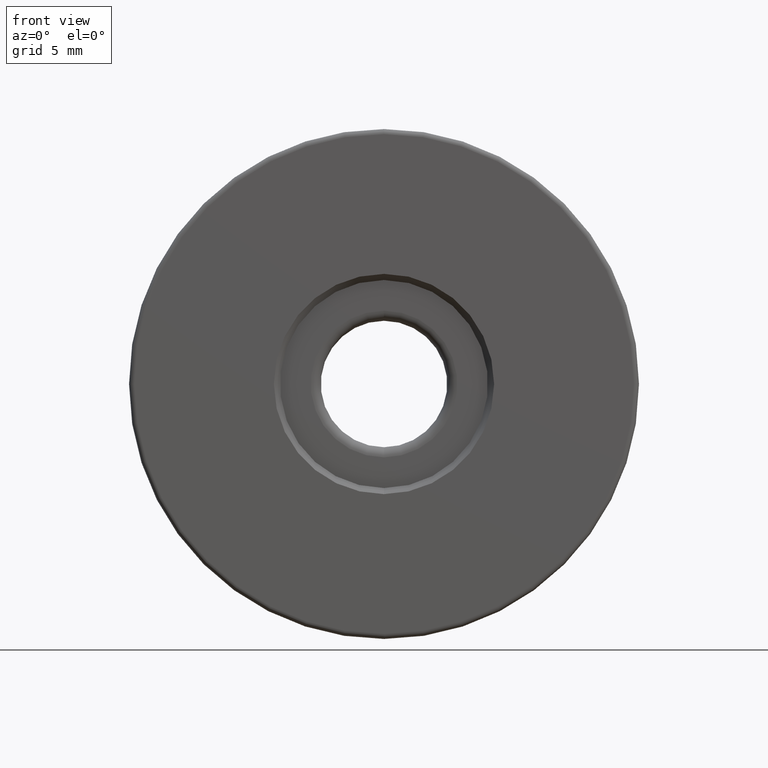
[diagram: clean part render]
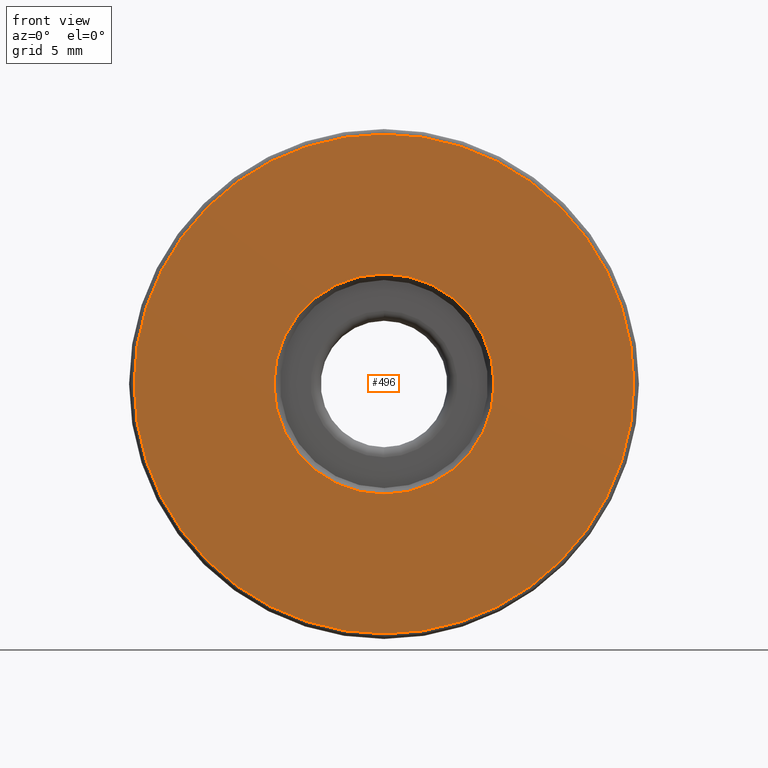
[diagram: same view with one face highlighted and labeled with its STEP entity id]
A machine part, front view. The second image highlights one B-rep face of the part: STEP entity #496.
In plain terms, the highlighted planar face has unit normal (0, 1, 0).
Its self-contained STEP definition (entity closure, byte-faithful):
#1 = DIRECTION ( 'NONE',  ( 0.0000000000000000000, 1.000000000000000000, 0.0000000000000000000 ) ) ;
#2 = DIRECTION ( 'NONE',  ( -0.0000000000000000000, -1.000000000000000000, -0.0000000000000000000 ) ) ;
#40 = EDGE_CURVE ( 'NONE', #392, #603, #432, .T. ) ;
#45 = CARTESIAN_POINT ( 'NONE',  ( -4.682026255059964726, -4.594975976998274980, 25.00000000000000000 ) ) ;
#48 = EDGE_CURVE ( 'NONE', #603, #392, #508, .T. ) ;
#53 = CIRCLE ( 'NONE', #425, 5.399999999999998579 ) ;
#72 = DIRECTION ( 'NONE',  ( 0.0000000000000000000, 1.000000000000000000, 0.0000000000000000000 ) ) ;
#80 = ORIENTED_EDGE ( 'NONE', *, *, #48, .T. ) ;
#87 = AXIS2_PLACEMENT_3D ( 'NONE', #569, #469, #137 ) ;
#94 = CARTESIAN_POINT ( 'NONE',  ( -4.682026255059964726, -4.594975976998274980, 25.00000000000000000 ) ) ;
#118 = EDGE_LOOP ( 'NONE', ( #422, #561 ) ) ;
#119 = CARTESIAN_POINT ( 'NONE',  ( -4.682026255059964726, -4.594975976998274980, 19.60000000000000142 ) ) ;
#137 = DIRECTION ( 'NONE',  ( 0.0000000000000000000, 0.0000000000000000000, 1.000000000000000000 ) ) ;
#146 = DIRECTION ( 'NONE',  ( 0.0000000000000000000, -0.0000000000000000000, 1.000000000000000000 ) ) ;
#161 = CARTESIAN_POINT ( 'NONE',  ( -4.682026255059964726, -4.594975976998274980, 37.25000000000000711 ) ) ;
#172 = CARTESIAN_POINT ( 'NONE',  ( -4.682026255059963837, -4.594975976998274980, 30.39999999999999858 ) ) ;
#200 = DIRECTION ( 'NONE',  ( 0.0000000000000000000, 0.0000000000000000000, 1.000000000000000000 ) ) ;
#234 = DIRECTION ( 'NONE',  ( 0.0000000000000000000, 1.000000000000000000, 0.0000000000000000000 ) ) ;
#246 = ORIENTED_EDGE ( 'NONE', *, *, #40, .T. ) ;
#269 = EDGE_CURVE ( 'NONE', #324, #573, #378, .T. ) ;
#274 = CARTESIAN_POINT ( 'NONE',  ( -4.682026255059962949, -4.594975976998274980, 12.75000000000000178 ) ) ;
#315 = DIRECTION ( 'NONE',  ( 0.0000000000000000000, 0.0000000000000000000, 1.000000000000000000 ) ) ;
#324 = VERTEX_POINT ( 'NONE', #172 ) ;
#335 = DIRECTION ( 'NONE',  ( 0.0000000000000000000, 0.0000000000000000000, 1.000000000000000000 ) ) ;
#376 = CARTESIAN_POINT ( 'NONE',  ( -4.682026255059964726, -4.594975976998274980, 25.00000000000000000 ) ) ;
#378 = CIRCLE ( 'NONE', #550, 5.399999999999998579 ) ;
#381 = FACE_OUTER_BOUND ( 'NONE', #507, .T. ) ;
#392 = VERTEX_POINT ( 'NONE', #274 ) ;
#414 = CARTESIAN_POINT ( 'NONE',  ( -4.682026255059964726, -4.594975976998274980, 25.00000000000000000 ) ) ;
#422 = ORIENTED_EDGE ( 'NONE', *, *, #429, .T. ) ;
#425 = AXIS2_PLACEMENT_3D ( 'NONE', #94, #1, #200 ) ;
#429 = EDGE_CURVE ( 'NONE', #573, #324, #53, .T. ) ;
#432 = CIRCLE ( 'NONE', #527, 12.25000000000000355 ) ;
#469 = DIRECTION ( 'NONE',  ( -0.0000000000000000000, -1.000000000000000000, -0.0000000000000000000 ) ) ;
#474 = PLANE ( 'NONE',  #571 ) ;
#496 = ADVANCED_FACE ( 'NONE', ( #381, #525 ), #474, .F. ) ;
#507 = EDGE_LOOP ( 'NONE', ( #80, #246 ) ) ;
#508 = CIRCLE ( 'NONE', #87, 12.25000000000000355 ) ;
#525 = FACE_BOUND ( 'NONE', #118, .T. ) ;
#527 = AXIS2_PLACEMENT_3D ( 'NONE', #376, #2, #335 ) ;
#550 = AXIS2_PLACEMENT_3D ( 'NONE', #414, #72, #315 ) ;
#561 = ORIENTED_EDGE ( 'NONE', *, *, #269, .T. ) ;
#569 = CARTESIAN_POINT ( 'NONE',  ( -4.682026255059964726, -4.594975976998274980, 25.00000000000000000 ) ) ;
#571 = AXIS2_PLACEMENT_3D ( 'NONE', #45, #234, #146 ) ;
#573 = VERTEX_POINT ( 'NONE', #119 ) ;
#603 = VERTEX_POINT ( 'NONE', #161 ) ;